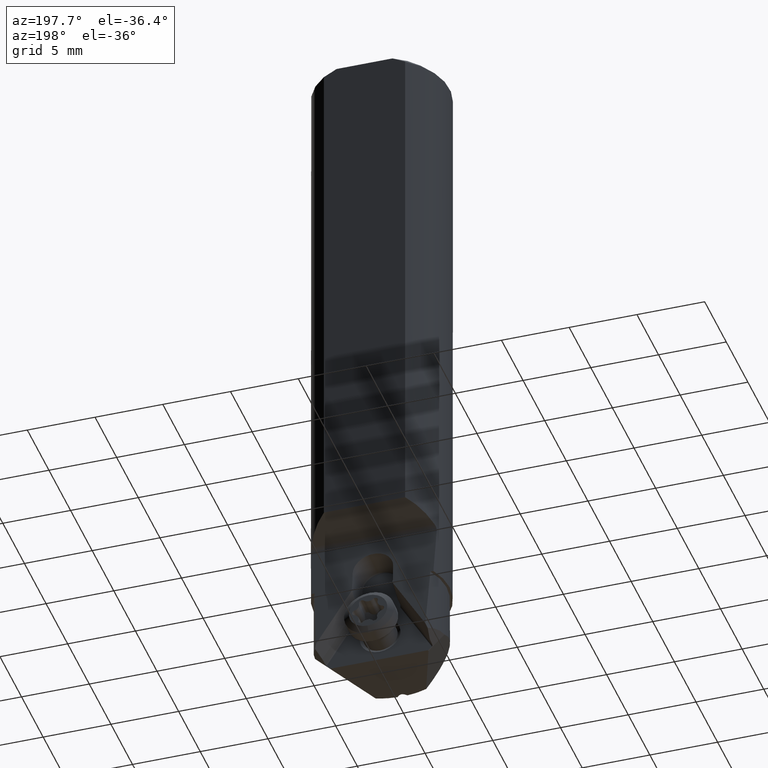
[diagram: clean part render]
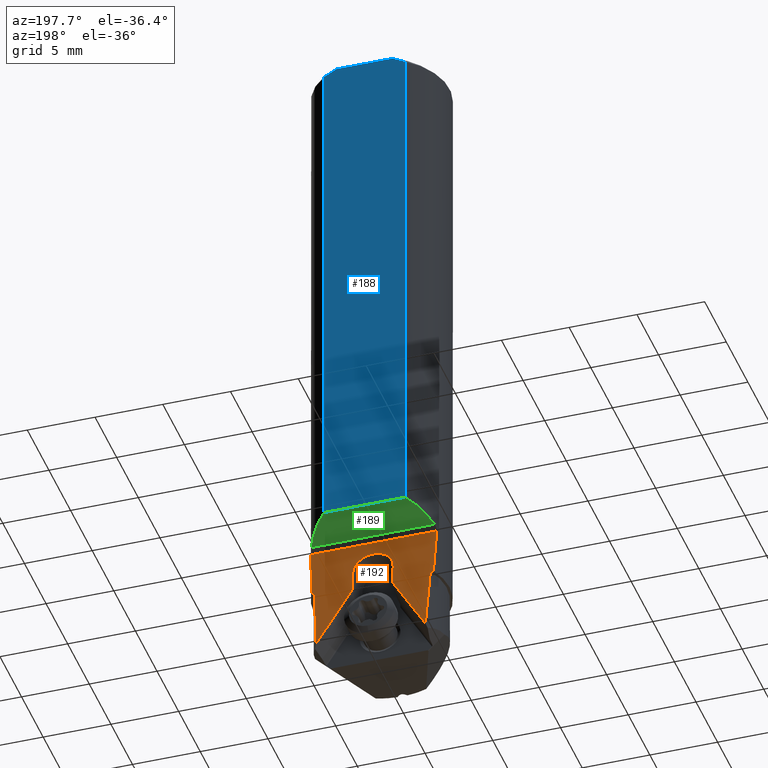
[diagram: same view with three faces highlighted in distinct colors, each labeled with its STEP entity id]
A machine part, auxiliary view with three faces highlighted in distinct colors.
Their STEP definitions:

[orange] entity #192 — the highlighted planar face has unit normal (0, 0.9962, 0.0872).
#99=FACE_OUTER_BOUND('',#283,.T.);
#159=B_SPLINE_CURVE_WITH_KNOTS('',3,(#1768,#1769,#1770,#1771),
 .UNSPECIFIED.,.F.,.F.,(4,4),(0.,1.),.UNSPECIFIED.);
#160=B_SPLINE_CURVE_WITH_KNOTS('',3,(#1777,#1778,#1779,#1780),
 .UNSPECIFIED.,.F.,.F.,(4,4),(0.,1.),.UNSPECIFIED.);
#162=B_SPLINE_CURVE_WITH_KNOTS('',3,(#1807,#1808,#1809,#1810),
 .UNSPECIFIED.,.F.,.F.,(4,4),(0.,1.),.UNSPECIFIED.);
#163=B_SPLINE_CURVE_WITH_KNOTS('',3,(#1815,#1816,#1817,#1818),
 .UNSPECIFIED.,.F.,.F.,(4,4),(0.,1.),.UNSPECIFIED.);
#192=ADVANCED_FACE('',(#99),#254,.T.);
#254=PLANE('',#1235);
#283=EDGE_LOOP('',(#519,#520,#521,#522,#523,#524,#525,#526,#527,#528,#529,
#530));
#349=LINE('',#1796,#421);
#350=LINE('',#1798,#422);
#351=LINE('',#1803,#423);
#352=LINE('',#1805,#424);
#353=LINE('',#1812,#425);
#354=LINE('',#1813,#426);
#355=LINE('',#1820,#427);
#421=VECTOR('',#1404,1.);
#422=VECTOR('',#1407,1.);
#423=VECTOR('',#1410,1.);
#424=VECTOR('',#1411,1.);
#425=VECTOR('',#1412,1.);
#426=VECTOR('',#1413,1.);
#427=VECTOR('',#1414,1.);
#519=ORIENTED_EDGE('',*,*,#958,.T.);
#520=ORIENTED_EDGE('',*,*,#959,.F.);
#521=ORIENTED_EDGE('',*,*,#960,.T.);
#522=ORIENTED_EDGE('',*,*,#961,.F.);
#523=ORIENTED_EDGE('',*,*,#962,.T.);
#524=ORIENTED_EDGE('',*,*,#963,.T.);
#525=ORIENTED_EDGE('',*,*,#952,.F.);
#526=ORIENTED_EDGE('',*,*,#957,.F.);
#527=ORIENTED_EDGE('',*,*,#955,.F.);
#528=ORIENTED_EDGE('',*,*,#964,.T.);
#529=ORIENTED_EDGE('',*,*,#965,.T.);
#530=ORIENTED_EDGE('',*,*,#966,.F.);
#838=VERTEX_POINT('',#1767);
#839=VERTEX_POINT('',#1772);
#841=VERTEX_POINT('',#1776);
#842=VERTEX_POINT('',#1781);
#843=VERTEX_POINT('',#1799);
#844=VERTEX_POINT('',#1800);
#845=VERTEX_POINT('',#1802);
#846=VERTEX_POINT('',#1804);
#847=VERTEX_POINT('',#1806);
#848=VERTEX_POINT('',#1811);
#849=VERTEX_POINT('',#1814);
#850=VERTEX_POINT('',#1819);
#952=EDGE_CURVE('',#838,#839,#159,.T.);
#955=EDGE_CURVE('',#841,#842,#160,.T.);
#957=EDGE_CURVE('',#842,#838,#349,.T.);
#958=EDGE_CURVE('',#843,#844,#350,.T.);
#959=EDGE_CURVE('',#845,#844,#1113,.T.);
#960=EDGE_CURVE('',#845,#846,#351,.T.);
#961=EDGE_CURVE('',#847,#846,#352,.T.);
#962=EDGE_CURVE('',#847,#848,#162,.T.);
#963=EDGE_CURVE('',#848,#839,#353,.T.);
#964=EDGE_CURVE('',#841,#849,#354,.T.);
#965=EDGE_CURVE('',#849,#850,#163,.T.);
#966=EDGE_CURVE('',#843,#850,#355,.T.);
#1113=CIRCLE('',#1234,1.5);
#1234=AXIS2_PLACEMENT_3D('',#1801,#1408,#1409);
#1235=AXIS2_PLACEMENT_3D('',#1821,#1415,#1416);
#1404=DIRECTION('',(-1.,0.,0.));
#1407=DIRECTION('',(7.67377814519366E-13,-0.0871557427475461,0.996194698091755));
#1408=DIRECTION('',(0.,0.996194698091544,0.0871557427499638));
#1409=DIRECTION('',(-1.,2.87096735274162E-13,-3.28440978118275E-12));
#1410=DIRECTION('',(7.67520635626366E-13,0.0871557427475461,-0.996194698091755));
#1411=DIRECTION('',(0.500000000000009,-0.0754790873051813,0.862729915662815));
#1412=DIRECTION('',(-1.,0.,4.232392109329E-12));
#1413=DIRECTION('',(-1.,8.452850782258E-13,-4.073279624015E-12));
#1414=DIRECTION('',(0.499999999999892,0.0754790873051587,-0.862729915662885));
#1415=DIRECTION('',(0.,0.996194698091748,0.0871557427476342));
#1416=DIRECTION('',(0.,-0.0871557427476342,0.996194698091748));
#1767=CARTESIAN_POINT('',(-4.64326665376921,1.8547438588639,-40.35177638046));
#1768=CARTESIAN_POINT('',(-4.643266653769,1.854743858864,-40.35177638046));
#1769=CARTESIAN_POINT('',(-4.600215401707,1.962520704787,-41.58367136638));
#1770=CARTESIAN_POINT('',(-4.552829485998,2.070283007528,-42.81540012298));
#1771=CARTESIAN_POINT('',(-4.500687518169,2.178029353292,-44.04694649049));
#1772=CARTESIAN_POINT('',(-4.500687518169,2.178029353292,-44.04694649049));
#1776=CARTESIAN_POINT('',(4.500687518169,2.178029353291,-44.04694649049));
#1777=CARTESIAN_POINT('',(4.500687518169,2.178029353291,-44.04694649049));
#1778=CARTESIAN_POINT('',(4.552829485998,2.070283007528,-42.81540012298));
#1779=CARTESIAN_POINT('',(4.600215401707,1.962520704787,-41.58367136639));
#1780=CARTESIAN_POINT('',(4.643266653769,1.854743858865,-40.35177638047));
#1781=CARTESIAN_POINT('',(4.64326665376921,1.8547438588644,-40.351776380465));
#1796=CARTESIAN_POINT('',(4.643266653769,1.854743858864,-40.35177638046));
#1798=CARTESIAN_POINT('',(1.499999999999,2.210864774104,-44.42225706775));
#1799=CARTESIAN_POINT('',(1.499999999999,2.210864774104,-44.42225706775));
#1800=CARTESIAN_POINT('',(1.5,2.075363357646,-42.87346879053));
#1801=CARTESIAN_POINT('',(0.,2.075363357646,-42.87346879052));
#1802=CARTESIAN_POINT('',(-1.5,2.075363357645,-42.87346879053));
#1803=CARTESIAN_POINT('',(-1.5,2.075363357645,-42.87346879053));
#1804=CARTESIAN_POINT('',(-1.499999999999,2.210864774104,-44.42225706775));
#1805=CARTESIAN_POINT('',(-4.038647588876,2.5940943801,-48.80259150825));
#1806=CARTESIAN_POINT('',(-4.038647588876,2.5940943801,-48.80259150825));
#1807=CARTESIAN_POINT('',(-4.038647588876,2.594094380099,-48.80259150825));
#1808=CARTESIAN_POINT('',(-4.12770294901,2.455447452585,-47.21784987515));
#1809=CARTESIAN_POINT('',(-4.206765151542,2.316756821336,-45.63260870607));
#1810=CARTESIAN_POINT('',(-4.27740436903,2.178029353292,-44.04694649049));
#1811=CARTESIAN_POINT('',(-4.27740436903,2.178029353292,-44.04694649049));
#1812=CARTESIAN_POINT('',(-4.27740436903,2.178029353292,-44.04694649049));
#1813=CARTESIAN_POINT('',(4.500687518169,2.178029353292,-44.04694649049));
#1814=CARTESIAN_POINT('',(4.27740436903,2.178029353292,-44.04694649049));
#1815=CARTESIAN_POINT('',(4.27740436903,2.178029353292,-44.04694649049));
#1816=CARTESIAN_POINT('',(4.206765151542,2.316756821337,-45.63260870607));
#1817=CARTESIAN_POINT('',(4.12770294901,2.455447452585,-47.21784987515));
#1818=CARTESIAN_POINT('',(4.038647588876,2.594094380099,-48.80259150825));
#1819=CARTESIAN_POINT('',(4.038647588876,2.594094380099,-48.80259150825));
#1820=CARTESIAN_POINT('',(1.499999999999,2.210864774104,-44.42225706775));
#1821=CARTESIAN_POINT('',(-5.773159728051E-14,2.224419119482,-44.57718394436));

[blue] entity #188 — the highlighted planar face has unit normal (0, 1, 0).
#95=FACE_OUTER_BOUND('',#279,.T.);
#156=B_SPLINE_CURVE_WITH_KNOTS('',3,(#1728,#1729,#1730,#1731,#1732,#1733),
 .UNSPECIFIED.,.F.,.F.,(4,1,1,4),(0.,0.3333333333333,0.6666666666667,1.),
 .UNSPECIFIED.);
#157=B_SPLINE_CURVE_WITH_KNOTS('',3,(#1734,#1735,#1736,#1737,#1738,#1739),
 .UNSPECIFIED.,.F.,.F.,(4,1,1,4),(0.,0.3333333333333,0.6666666666667,1.),
 .UNSPECIFIED.);
#188=ADVANCED_FACE('',(#95),#252,.T.);
#252=PLANE('',#1224);
#279=EDGE_LOOP('',(#493,#494,#495,#496,#497,#498));
#344=LINE('',#1719,#416);
#345=LINE('',#1725,#417);
#346=LINE('',#1741,#418);
#347=LINE('',#1743,#419);
#416=VECTOR('',#1375,1.);
#417=VECTOR('',#1382,1.);
#418=VECTOR('',#1383,1.);
#419=VECTOR('',#1384,1.);
#493=ORIENTED_EDGE('',*,*,#941,.T.);
#494=ORIENTED_EDGE('',*,*,#942,.T.);
#495=ORIENTED_EDGE('',*,*,#938,.F.);
#496=ORIENTED_EDGE('',*,*,#943,.T.);
#497=ORIENTED_EDGE('',*,*,#944,.T.);
#498=ORIENTED_EDGE('',*,*,#945,.T.);
#827=VERTEX_POINT('',#1716);
#828=VERTEX_POINT('',#1718);
#831=VERTEX_POINT('',#1726);
#832=VERTEX_POINT('',#1727);
#833=VERTEX_POINT('',#1740);
#834=VERTEX_POINT('',#1742);
#938=EDGE_CURVE('',#828,#827,#344,.T.);
#941=EDGE_CURVE('',#831,#832,#345,.T.);
#942=EDGE_CURVE('',#832,#827,#156,.T.);
#943=EDGE_CURVE('',#828,#833,#157,.T.);
#944=EDGE_CURVE('',#833,#834,#346,.T.);
#945=EDGE_CURVE('',#834,#831,#347,.T.);
#1224=AXIS2_PLACEMENT_3D('',#1744,#1385,#1386);
#1375=DIRECTION('',(-1.,0.,0.));
#1382=DIRECTION('',(0.,0.,1.));
#1383=DIRECTION('',(0.,0.,-1.));
#1384=DIRECTION('',(-1.,0.,0.));
#1385=DIRECTION('',(0.,1.,0.));
#1386=DIRECTION('',(0.,0.,1.));
#1716=CARTESIAN_POINT('',(-2.061552812809,4.,-1.59872115546E-14));
#1718=CARTESIAN_POINT('',(2.061552812809,4.,-1.42108547152E-14));
#1719=CARTESIAN_POINT('',(2.061552812809,4.,-1.42108547152E-14));
#1725=CARTESIAN_POINT('',(-3.,4.,-38.54445821186));
#1726=CARTESIAN_POINT('',(-2.99999999999981,4.,-38.5444582118603));
#1727=CARTESIAN_POINT('',(-3.,4.,-0.5));
#1728=CARTESIAN_POINT('',(-3.,4.,-0.5));
#1729=CARTESIAN_POINT('',(-2.887351665282,4.,-0.432410999169));
#1730=CARTESIAN_POINT('',(-2.667568431559,4.,-0.3054528294538));
#1731=CARTESIAN_POINT('',(-2.357624555566,4.,-0.1406484086766));
#1732=CARTESIAN_POINT('',(-2.158634601449,4.,-0.04447538543202));
#1733=CARTESIAN_POINT('',(-2.061552812809,4.,-1.59872115546E-14));
#1734=CARTESIAN_POINT('',(2.061552812809,4.,-1.42108547152E-14));
#1735=CARTESIAN_POINT('',(2.159236140912,4.,-0.04475096440345));
#1736=CARTESIAN_POINT('',(2.359007085561,4.,-0.1413408195306));
#1737=CARTESIAN_POINT('',(2.669043307875,4.,-0.3062819921717));
#1738=CARTESIAN_POINT('',(2.887973965091,4.,-0.4327843790545));
#1739=CARTESIAN_POINT('',(3.,4.,-0.5));
#1740=CARTESIAN_POINT('',(3.,4.,-0.5));
#1741=CARTESIAN_POINT('',(3.,4.,-0.5));
#1742=CARTESIAN_POINT('',(2.99999999999981,4.,-38.5444582118603));
#1743=CARTESIAN_POINT('',(3.,4.,-38.54445821186));
#1744=CARTESIAN_POINT('',(0.,4.,-19.27222910593));

[green] entity #189 — the highlighted planar face has unit normal (0, -0.5736, 0.8192).
#83=ELLIPSE('',#1225,6.10387294379393,5.);
#84=ELLIPSE('',#1226,6.10387294379393,5.);
#96=FACE_OUTER_BOUND('',#280,.T.);
#189=ADVANCED_FACE('',(#96),#253,.F.);
#253=PLANE('',#1227);
#280=EDGE_LOOP('',(#499,#500,#501,#502));
#347=LINE('',#1743,#419);
#348=LINE('',#1747,#420);
#419=VECTOR('',#1384,1.);
#420=VECTOR('',#1389,1.);
#499=ORIENTED_EDGE('',*,*,#946,.T.);
#500=ORIENTED_EDGE('',*,*,#947,.T.);
#501=ORIENTED_EDGE('',*,*,#948,.T.);
#502=ORIENTED_EDGE('',*,*,#945,.F.);
#831=VERTEX_POINT('',#1726);
#834=VERTEX_POINT('',#1742);
#835=VERTEX_POINT('',#1746);
#836=VERTEX_POINT('',#1748);
#945=EDGE_CURVE('',#834,#831,#347,.T.);
#946=EDGE_CURVE('',#834,#835,#83,.T.);
#947=EDGE_CURVE('',#835,#836,#348,.T.);
#948=EDGE_CURVE('',#836,#831,#84,.T.);
#1225=AXIS2_PLACEMENT_3D('',#1745,#1387,#1388);
#1226=AXIS2_PLACEMENT_3D('',#1749,#1390,#1391);
#1227=AXIS2_PLACEMENT_3D('',#1750,#1392,#1393);
#1384=DIRECTION('',(-1.,0.,0.));
#1387=DIRECTION('',(0.,0.573576436348488,-0.819152044290783));
#1388=DIRECTION('',(0.,-0.819152044290783,-0.573576436348488));
#1389=DIRECTION('',(-1.,-1.248434072163E-13,1.724399562175E-13));
#1390=DIRECTION('',(0.,0.573576436348488,-0.819152044290783));
#1391=DIRECTION('',(0.,-0.819152044290783,-0.573576436348488));
#1392=DIRECTION('',(0.,-0.573576436348488,0.819152044290783));
#1393=DIRECTION('',(0.,0.819152044290783,0.573576436348488));
#1726=CARTESIAN_POINT('',(-2.99999999999981,4.,-38.5444582118603));
#1742=CARTESIAN_POINT('',(2.99999999999981,4.,-38.5444582118603));
#1743=CARTESIAN_POINT('',(3.,4.,-38.54445821186));
#1745=CARTESIAN_POINT('',(0.,0.,-41.3452883646808));
#1746=CARTESIAN_POINT('',(4.5531774667378,2.0660529897345,-39.89862248694));
#1747=CARTESIAN_POINT('',(4.553177466738,2.066052989735,-39.89862248694));
#1748=CARTESIAN_POINT('',(-4.55317746673809,2.06605298973393,-39.8986224869392));
#1749=CARTESIAN_POINT('',(0.,0.,-41.3452883646808));
#1750=CARTESIAN_POINT('',(0.,3.033026494866,-39.2215403494));